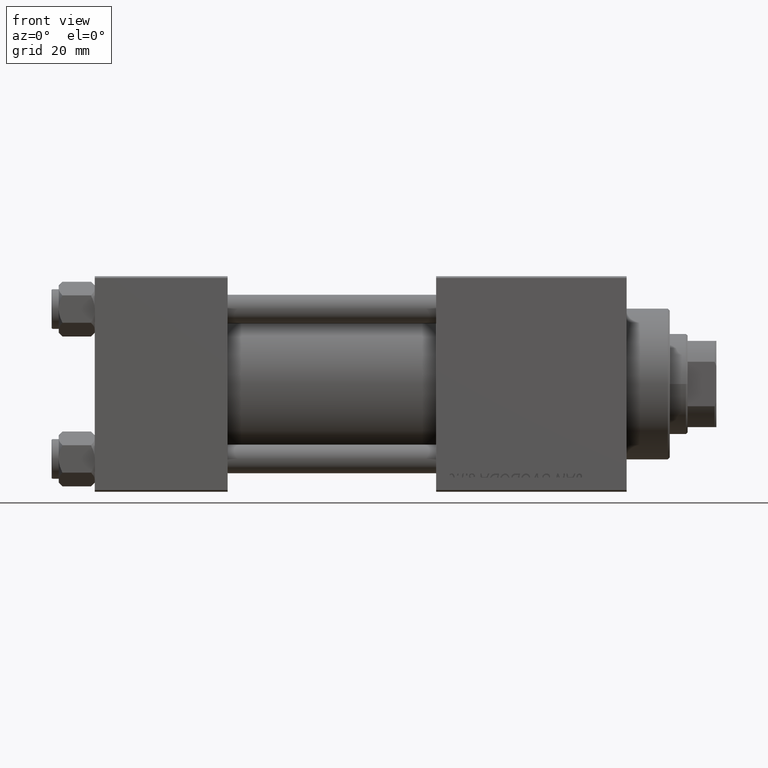
[diagram: clean part render]
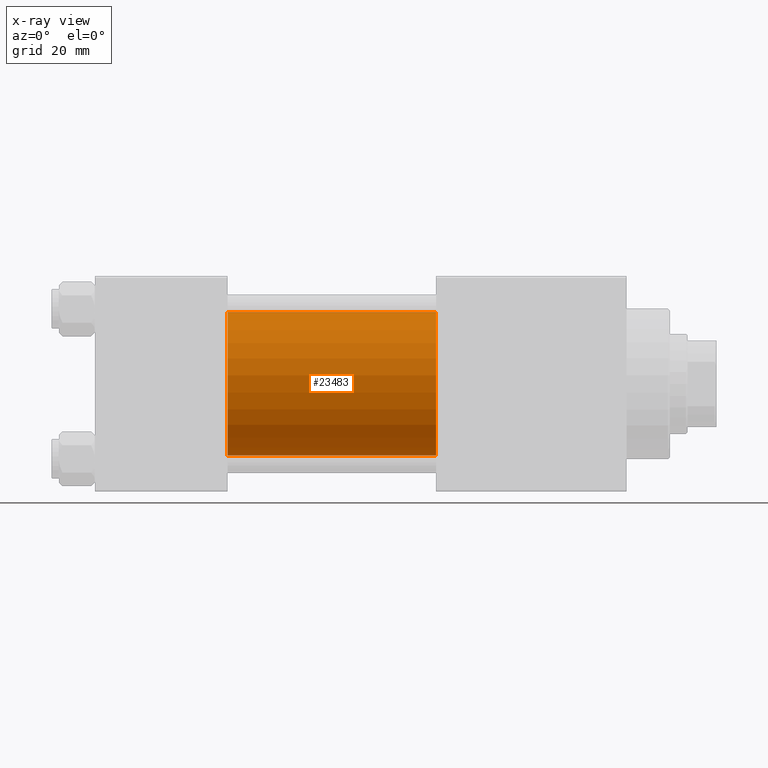
[diagram: x-ray — body ghosted, one internal face saturated and labeled with its STEP entity id]
A machine part, front view, then the same camera in x-ray: the body is ghosted and one INTERNAL B-rep face — a face not visible from any outside direction — is saturated and labeled: STEP entity #23483.
In plain terms, the highlighted cylindrical surface (partial cylindrical patch) has radius 20 mm, axis along (-1, -0, -0).
Its self-contained STEP definition (entity closure, byte-faithful):
#1724 = CYLINDRICAL_SURFACE ( 'NONE', #47656, 20.00000000000000000 ) ;
#4488 = LINE ( 'NONE', #4734, #28794 ) ;
#4734 = CARTESIAN_POINT ( 'NONE',  ( 95.00000000000000000, -2.602085213965210642E-15, 20.00000000000000000 ) ) ;
#4773 = EDGE_CURVE ( 'NONE', #36566, #48806, #41602, .T. ) ;
#4783 = FACE_OUTER_BOUND ( 'NONE', #22355, .T. ) ;
#7255 = VERTEX_POINT ( 'NONE', #32763 ) ;
#8225 = LINE ( 'NONE', #27647, #10901 ) ;
#8982 = CIRCLE ( 'NONE', #22055, 20.00000000000000000 ) ;
#10869 = EDGE_CURVE ( 'NONE', #48905, #36566, #4488, .T. ) ;
#10901 = VECTOR ( 'NONE', #43188, 1000.000000000000000 ) ;
#12415 = ORIENTED_EDGE ( 'NONE', *, *, #40991, .T. ) ;
#13307 = ORIENTED_EDGE ( 'NONE', *, *, #10869, .F. ) ;
#13523 = EDGE_CURVE ( 'NONE', #7255, #48806, #8225, .T. ) ;
#15973 = DIRECTION ( 'NONE',  ( -1.000000000000000000, -0.000000000000000000, -0.000000000000000000 ) ) ;
#17308 = CARTESIAN_POINT ( 'NONE',  ( 95.00000000000000000, -2.602085213965210642E-15, 0.000000000000000000 ) ) ;
#17580 = DIRECTION ( 'NONE',  ( 1.000000000000000000, 0.000000000000000000, 0.000000000000000000 ) ) ;
#20375 = DIRECTION ( 'NONE',  ( -1.000000000000000000, -0.000000000000000000, -0.000000000000000000 ) ) ;
#22055 = AXIS2_PLACEMENT_3D ( 'NONE', #40842, #48740, #29361 ) ;
#22355 = EDGE_LOOP ( 'NONE', ( #12415, #36263, #45207, #13307 ) ) ;
#23483 = ADVANCED_FACE ( 'NONE', ( #4783 ), #1724, .F. ) ;
#25233 = CARTESIAN_POINT ( 'NONE',  ( 37.00000000000000000, -2.602085213965210642E-15, 0.000000000000000000 ) ) ;
#27647 = CARTESIAN_POINT ( 'NONE',  ( 95.00000000000000000, -1.527916156705046464E-16, -20.00000000000000000 ) ) ;
#27791 = DIRECTION ( 'NONE',  ( 0.000000000000000000, 0.000000000000000000, 1.000000000000000000 ) ) ;
#28794 = VECTOR ( 'NONE', #15973, 1000.000000000000000 ) ;
#29361 = DIRECTION ( 'NONE',  ( 0.000000000000000000, 0.000000000000000000, -1.000000000000000000 ) ) ;
#31695 = CARTESIAN_POINT ( 'NONE',  ( 37.00000000000000000, -1.527916156705046464E-16, -20.00000000000000000 ) ) ;
#32763 = CARTESIAN_POINT ( 'NONE',  ( 95.00000000000000000, -1.527916156705046464E-16, -20.00000000000000000 ) ) ;
#33208 = CARTESIAN_POINT ( 'NONE',  ( 95.00000000000000000, -2.602085213965210642E-15, 20.00000000000000000 ) ) ;
#34715 = CARTESIAN_POINT ( 'NONE',  ( 37.00000000000000000, -2.602085213965210642E-15, 20.00000000000000000 ) ) ;
#36263 = ORIENTED_EDGE ( 'NONE', *, *, #13523, .T. ) ;
#36452 = DIRECTION ( 'NONE',  ( 0.000000000000000000, 0.000000000000000000, -1.000000000000000000 ) ) ;
#36566 = VERTEX_POINT ( 'NONE', #34715 ) ;
#37510 = AXIS2_PLACEMENT_3D ( 'NONE', #25233, #17580, #36452 ) ;
#40842 = CARTESIAN_POINT ( 'NONE',  ( 95.00000000000000000, -2.602085213965210642E-15, 0.000000000000000000 ) ) ;
#40991 = EDGE_CURVE ( 'NONE', #48905, #7255, #8982, .T. ) ;
#41602 = CIRCLE ( 'NONE', #37510, 20.00000000000000000 ) ;
#43188 = DIRECTION ( 'NONE',  ( -1.000000000000000000, -0.000000000000000000, -0.000000000000000000 ) ) ;
#45207 = ORIENTED_EDGE ( 'NONE', *, *, #4773, .F. ) ;
#47656 = AXIS2_PLACEMENT_3D ( 'NONE', #17308, #20375, #27791 ) ;
#48740 = DIRECTION ( 'NONE',  ( 1.000000000000000000, 0.000000000000000000, 0.000000000000000000 ) ) ;
#48806 = VERTEX_POINT ( 'NONE', #31695 ) ;
#48905 = VERTEX_POINT ( 'NONE', #33208 ) ;